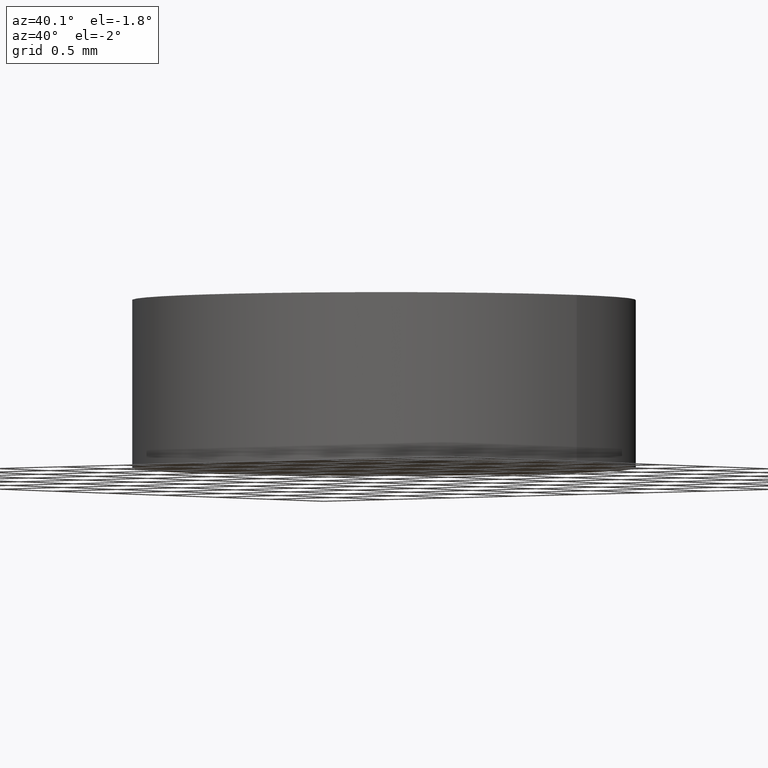
[diagram: clean part render]
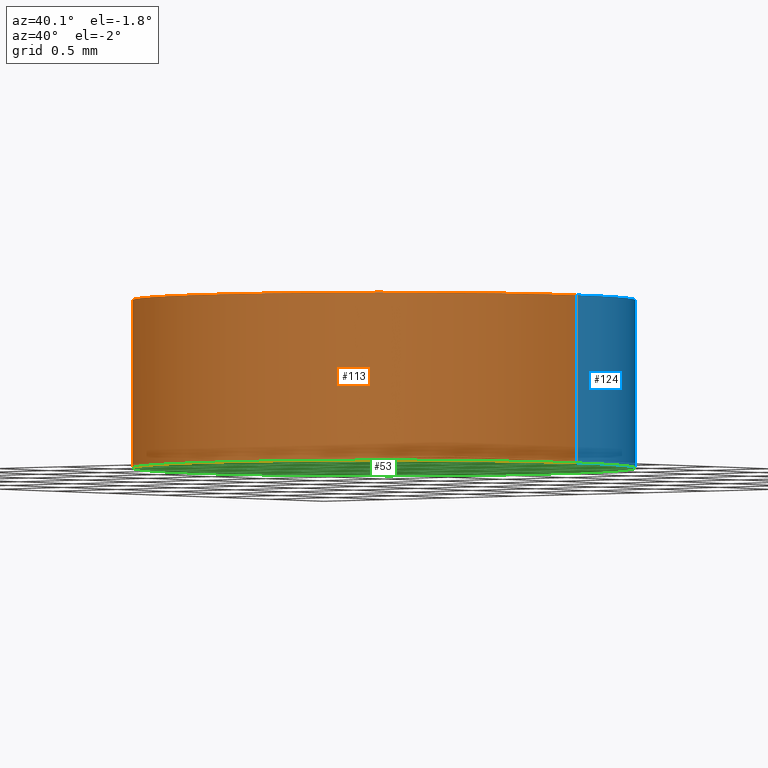
[diagram: same view with three faces highlighted in distinct colors, each labeled with its STEP entity id]
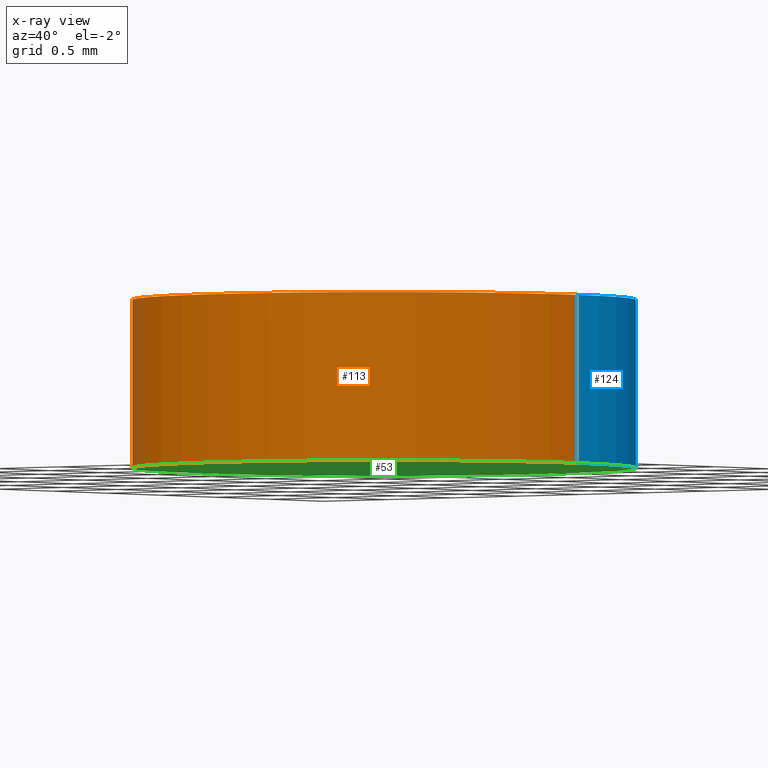
[diagram: x-ray of the same camera — body ghosted, the three highlighted faces saturated]
A machine part, auxiliary view with three faces highlighted in distinct colors.
The next image is the same camera in x-ray (body ghosted, the three faces saturated) — at least one of them is partly hidden behind the body in this view.
Their STEP definitions:

[orange] entity #113 — the highlighted cylindrical surface (partial cylindrical patch) has radius 1.5 mm, axis along (-0, -0, -1).
#3 = VERTEX_POINT ( 'NONE', #110 ) ;
#10 = ORIENTED_EDGE ( 'NONE', *, *, #115, .F. ) ;
#17 = VERTEX_POINT ( 'NONE', #117 ) ;
#18 = DIRECTION ( 'NONE',  ( 0.0000000000000000000, 0.0000000000000000000, 1.000000000000000000 ) ) ;
#19 = LINE ( 'NONE', #21, #89 ) ;
#21 = CARTESIAN_POINT ( 'NONE',  ( -1.500000000000000200, 0.0000000000000000000, 1.000000000000000000 ) ) ;
#23 = EDGE_CURVE ( 'NONE', #31, #17, #127, .T. ) ;
#29 = AXIS2_PLACEMENT_3D ( 'NONE', #138, #54, #123 ) ;
#31 = VERTEX_POINT ( 'NONE', #42 ) ;
#34 = AXIS2_PLACEMENT_3D ( 'NONE', #55, #18, #45 ) ;
#40 = DIRECTION ( 'NONE',  ( -0.0000000000000000000, -0.0000000000000000000, -1.000000000000000000 ) ) ;
#42 = CARTESIAN_POINT ( 'NONE',  ( -1.500000000000000200, 0.0000000000000000000, 0.0000000000000000000 ) ) ;
#44 = EDGE_CURVE ( 'NONE', #100, #17, #73, .T. ) ;
#45 = DIRECTION ( 'NONE',  ( 1.000000000000000000, 0.0000000000000000000, 0.0000000000000000000 ) ) ;
#46 = DIRECTION ( 'NONE',  ( -1.000000000000000000, 0.0000000000000000000, 0.0000000000000000000 ) ) ;
#54 = DIRECTION ( 'NONE',  ( 0.0000000000000000000, 0.0000000000000000000, 1.000000000000000000 ) ) ;
#55 = CARTESIAN_POINT ( 'NONE',  ( 0.0000000000000000000, 0.0000000000000000000, 0.0000000000000000000 ) ) ;
#57 = ORIENTED_EDGE ( 'NONE', *, *, #23, .T. ) ;
#73 = LINE ( 'NONE', #97, #119 ) ;
#79 = DIRECTION ( 'NONE',  ( -0.0000000000000000000, -0.0000000000000000000, -1.000000000000000000 ) ) ;
#81 = CIRCLE ( 'NONE', #29, 1.500000000000000200 ) ;
#86 = FACE_OUTER_BOUND ( 'NONE', #90, .T. ) ;
#87 = EDGE_CURVE ( 'NONE', #3, #31, #19, .T. ) ;
#89 = VECTOR ( 'NONE', #79, 1000.000000000000000 ) ;
#90 = EDGE_LOOP ( 'NONE', ( #134, #10, #93, #57 ) ) ;
#93 = ORIENTED_EDGE ( 'NONE', *, *, #87, .T. ) ;
#97 = CARTESIAN_POINT ( 'NONE',  ( 1.500000000000000200, 1.836970198721030200E-016, 1.000000000000000000 ) ) ;
#100 = VERTEX_POINT ( 'NONE', #109 ) ;
#104 = AXIS2_PLACEMENT_3D ( 'NONE', #128, #40, #46 ) ;
#109 = CARTESIAN_POINT ( 'NONE',  ( 1.500000000000000200, 1.836970198721030200E-016, 1.000000000000000000 ) ) ;
#110 = CARTESIAN_POINT ( 'NONE',  ( -1.500000000000000200, 0.0000000000000000000, 1.000000000000000000 ) ) ;
#113 = ADVANCED_FACE ( 'NONE', ( #86 ), #118, .T. ) ;
#115 = EDGE_CURVE ( 'NONE', #3, #100, #81, .T. ) ;
#117 = CARTESIAN_POINT ( 'NONE',  ( 1.500000000000000200, 1.836970198721030200E-016, 0.0000000000000000000 ) ) ;
#118 = CYLINDRICAL_SURFACE ( 'NONE', #104, 1.500000000000000200 ) ;
#119 = VECTOR ( 'NONE', #131, 1000.000000000000000 ) ;
#123 = DIRECTION ( 'NONE',  ( 1.000000000000000000, 0.0000000000000000000, 0.0000000000000000000 ) ) ;
#127 = CIRCLE ( 'NONE', #34, 1.500000000000000200 ) ;
#128 = CARTESIAN_POINT ( 'NONE',  ( 0.0000000000000000000, 0.0000000000000000000, 1.000000000000000000 ) ) ;
#131 = DIRECTION ( 'NONE',  ( -0.0000000000000000000, -0.0000000000000000000, -1.000000000000000000 ) ) ;
#134 = ORIENTED_EDGE ( 'NONE', *, *, #44, .F. ) ;
#138 = CARTESIAN_POINT ( 'NONE',  ( 0.0000000000000000000, 0.0000000000000000000, 1.000000000000000000 ) ) ;

[blue] entity #124 — the highlighted cylindrical surface (partial cylindrical patch) has radius 1.5 mm, axis along (-0, -0, -1).
#3 = VERTEX_POINT ( 'NONE', #110 ) ;
#6 = DIRECTION ( 'NONE',  ( -0.0000000000000000000, -0.0000000000000000000, -1.000000000000000000 ) ) ;
#17 = VERTEX_POINT ( 'NONE', #117 ) ;
#19 = LINE ( 'NONE', #21, #89 ) ;
#21 = CARTESIAN_POINT ( 'NONE',  ( -1.500000000000000200, 0.0000000000000000000, 1.000000000000000000 ) ) ;
#26 = ORIENTED_EDGE ( 'NONE', *, *, #87, .F. ) ;
#28 = CARTESIAN_POINT ( 'NONE',  ( 0.0000000000000000000, 0.0000000000000000000, 1.000000000000000000 ) ) ;
#31 = VERTEX_POINT ( 'NONE', #42 ) ;
#39 = EDGE_LOOP ( 'NONE', ( #126, #66, #82, #26 ) ) ;
#42 = CARTESIAN_POINT ( 'NONE',  ( -1.500000000000000200, 0.0000000000000000000, 0.0000000000000000000 ) ) ;
#44 = EDGE_CURVE ( 'NONE', #100, #17, #73, .T. ) ;
#48 = CYLINDRICAL_SURFACE ( 'NONE', #121, 1.500000000000000200 ) ;
#56 = CIRCLE ( 'NONE', #111, 1.500000000000000200 ) ;
#63 = DIRECTION ( 'NONE',  ( 1.000000000000000000, 0.0000000000000000000, 0.0000000000000000000 ) ) ;
#64 = CARTESIAN_POINT ( 'NONE',  ( 0.0000000000000000000, 0.0000000000000000000, 0.0000000000000000000 ) ) ;
#66 = ORIENTED_EDGE ( 'NONE', *, *, #44, .T. ) ;
#70 = CARTESIAN_POINT ( 'NONE',  ( 0.0000000000000000000, 0.0000000000000000000, 1.000000000000000000 ) ) ;
#71 = DIRECTION ( 'NONE',  ( 1.000000000000000000, 0.0000000000000000000, 0.0000000000000000000 ) ) ;
#72 = CIRCLE ( 'NONE', #112, 1.500000000000000200 ) ;
#73 = LINE ( 'NONE', #97, #119 ) ;
#79 = DIRECTION ( 'NONE',  ( -0.0000000000000000000, -0.0000000000000000000, -1.000000000000000000 ) ) ;
#82 = ORIENTED_EDGE ( 'NONE', *, *, #125, .T. ) ;
#84 = DIRECTION ( 'NONE',  ( -1.000000000000000000, 0.0000000000000000000, 0.0000000000000000000 ) ) ;
#87 = EDGE_CURVE ( 'NONE', #3, #31, #19, .T. ) ;
#89 = VECTOR ( 'NONE', #79, 1000.000000000000000 ) ;
#92 = DIRECTION ( 'NONE',  ( 0.0000000000000000000, 0.0000000000000000000, 1.000000000000000000 ) ) ;
#97 = CARTESIAN_POINT ( 'NONE',  ( 1.500000000000000200, 1.836970198721030200E-016, 1.000000000000000000 ) ) ;
#100 = VERTEX_POINT ( 'NONE', #109 ) ;
#106 = EDGE_CURVE ( 'NONE', #100, #3, #56, .T. ) ;
#109 = CARTESIAN_POINT ( 'NONE',  ( 1.500000000000000200, 1.836970198721030200E-016, 1.000000000000000000 ) ) ;
#110 = CARTESIAN_POINT ( 'NONE',  ( -1.500000000000000200, 0.0000000000000000000, 1.000000000000000000 ) ) ;
#111 = AXIS2_PLACEMENT_3D ( 'NONE', #28, #92, #63 ) ;
#112 = AXIS2_PLACEMENT_3D ( 'NONE', #64, #139, #71 ) ;
#117 = CARTESIAN_POINT ( 'NONE',  ( 1.500000000000000200, 1.836970198721030200E-016, 0.0000000000000000000 ) ) ;
#119 = VECTOR ( 'NONE', #131, 1000.000000000000000 ) ;
#121 = AXIS2_PLACEMENT_3D ( 'NONE', #70, #6, #84 ) ;
#124 = ADVANCED_FACE ( 'NONE', ( #140 ), #48, .T. ) ;
#125 = EDGE_CURVE ( 'NONE', #17, #31, #72, .T. ) ;
#126 = ORIENTED_EDGE ( 'NONE', *, *, #106, .F. ) ;
#131 = DIRECTION ( 'NONE',  ( -0.0000000000000000000, -0.0000000000000000000, -1.000000000000000000 ) ) ;
#139 = DIRECTION ( 'NONE',  ( 0.0000000000000000000, 0.0000000000000000000, 1.000000000000000000 ) ) ;
#140 = FACE_OUTER_BOUND ( 'NONE', #39, .T. ) ;

[green] entity #53 — the highlighted planar face has unit normal (0, 0, 1).
#17 = VERTEX_POINT ( 'NONE', #117 ) ;
#18 = DIRECTION ( 'NONE',  ( 0.0000000000000000000, 0.0000000000000000000, 1.000000000000000000 ) ) ;
#23 = EDGE_CURVE ( 'NONE', #31, #17, #127, .T. ) ;
#31 = VERTEX_POINT ( 'NONE', #42 ) ;
#32 = CARTESIAN_POINT ( 'NONE',  ( 0.0000000000000000000, 0.0000000000000000000, 0.0000000000000000000 ) ) ;
#34 = AXIS2_PLACEMENT_3D ( 'NONE', #55, #18, #45 ) ;
#42 = CARTESIAN_POINT ( 'NONE',  ( -1.500000000000000200, 0.0000000000000000000, 0.0000000000000000000 ) ) ;
#43 = FACE_OUTER_BOUND ( 'NONE', #80, .T. ) ;
#45 = DIRECTION ( 'NONE',  ( 1.000000000000000000, 0.0000000000000000000, 0.0000000000000000000 ) ) ;
#53 = ADVANCED_FACE ( 'NONE', ( #43 ), #96, .F. ) ;
#55 = CARTESIAN_POINT ( 'NONE',  ( 0.0000000000000000000, 0.0000000000000000000, 0.0000000000000000000 ) ) ;
#61 = AXIS2_PLACEMENT_3D ( 'NONE', #32, #105, #135 ) ;
#62 = ORIENTED_EDGE ( 'NONE', *, *, #125, .F. ) ;
#64 = CARTESIAN_POINT ( 'NONE',  ( 0.0000000000000000000, 0.0000000000000000000, 0.0000000000000000000 ) ) ;
#71 = DIRECTION ( 'NONE',  ( 1.000000000000000000, 0.0000000000000000000, 0.0000000000000000000 ) ) ;
#72 = CIRCLE ( 'NONE', #112, 1.500000000000000200 ) ;
#80 = EDGE_LOOP ( 'NONE', ( #99, #62 ) ) ;
#96 = PLANE ( 'NONE',  #61 ) ;
#99 = ORIENTED_EDGE ( 'NONE', *, *, #23, .F. ) ;
#105 = DIRECTION ( 'NONE',  ( 0.0000000000000000000, 0.0000000000000000000, 1.000000000000000000 ) ) ;
#112 = AXIS2_PLACEMENT_3D ( 'NONE', #64, #139, #71 ) ;
#117 = CARTESIAN_POINT ( 'NONE',  ( 1.500000000000000200, 1.836970198721030200E-016, 0.0000000000000000000 ) ) ;
#125 = EDGE_CURVE ( 'NONE', #17, #31, #72, .T. ) ;
#127 = CIRCLE ( 'NONE', #34, 1.500000000000000200 ) ;
#135 = DIRECTION ( 'NONE',  ( 1.000000000000000000, 0.0000000000000000000, -0.0000000000000000000 ) ) ;
#139 = DIRECTION ( 'NONE',  ( 0.0000000000000000000, 0.0000000000000000000, 1.000000000000000000 ) ) ;